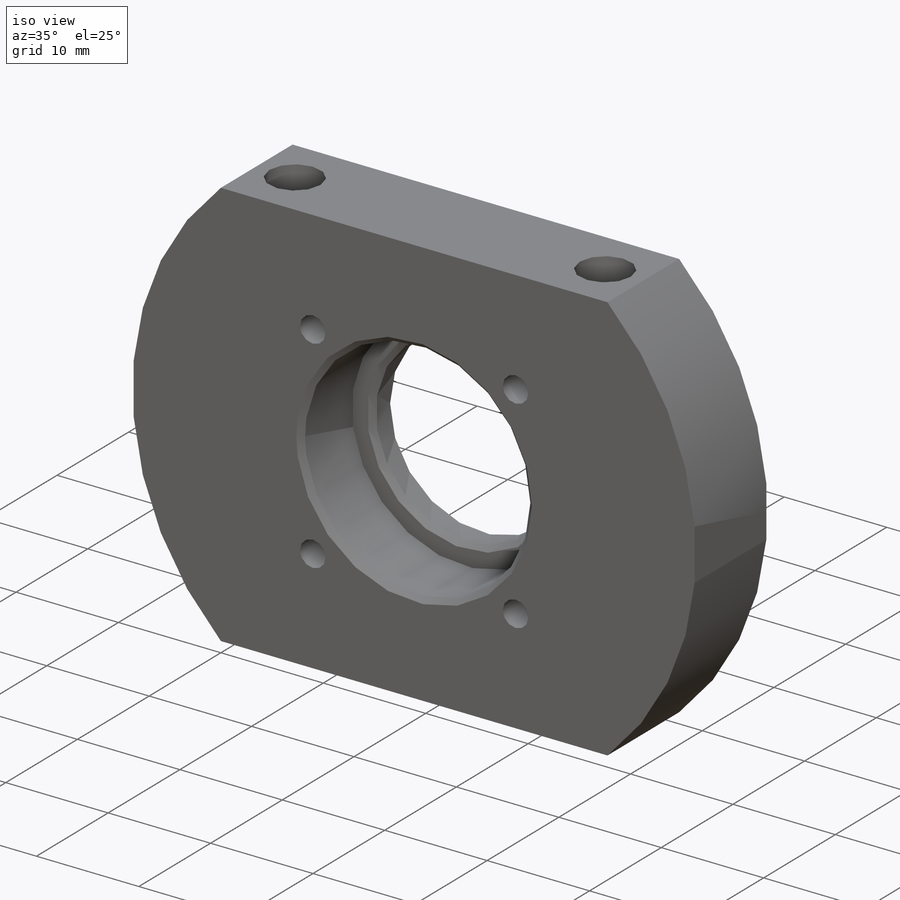
[diagram: iso view]
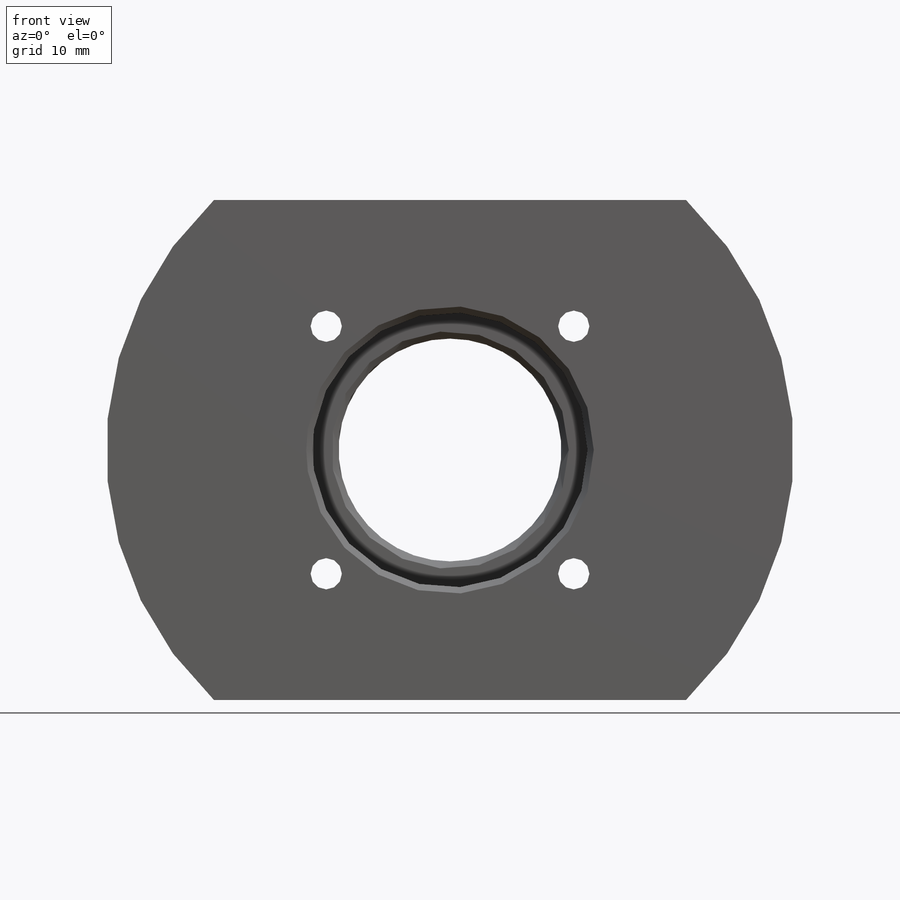
[diagram: front view]
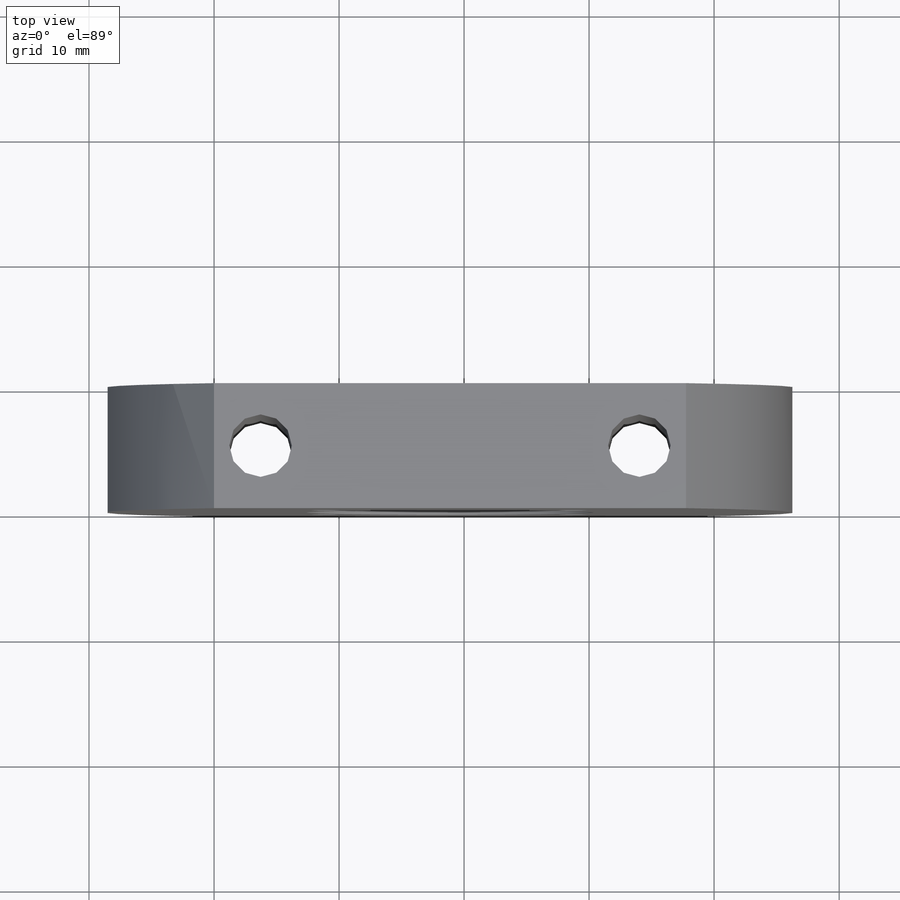
[diagram: top view]
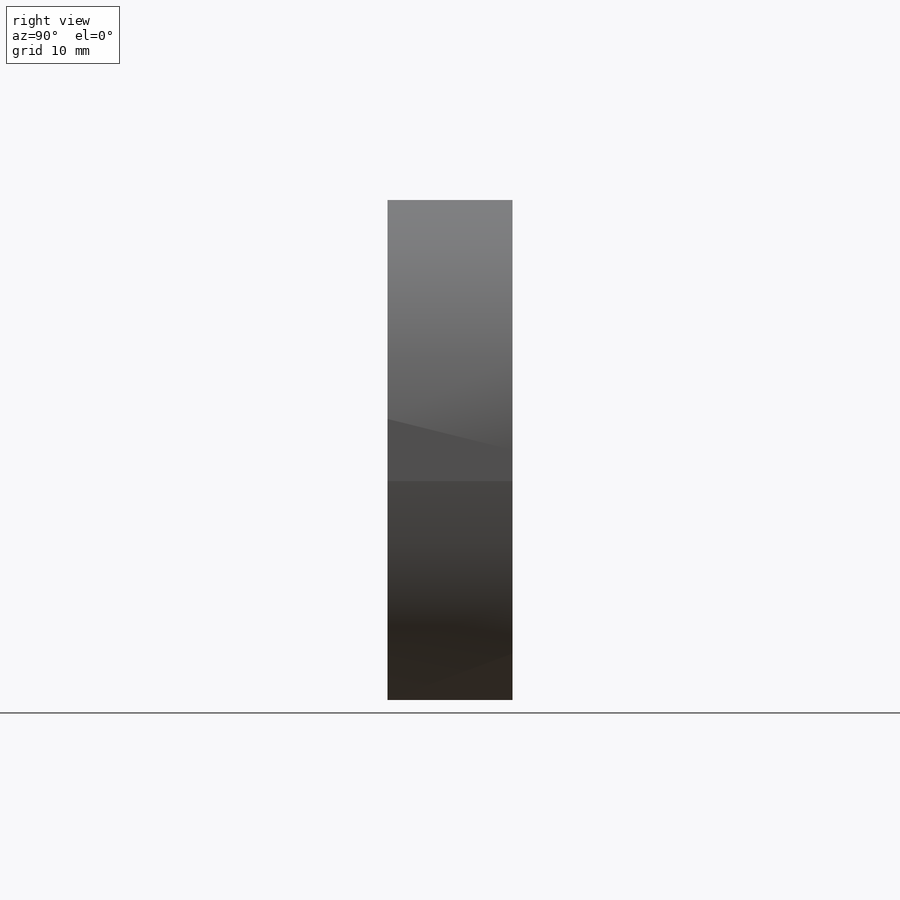
[diagram: right view]
SOLIDWORKS PART (.sldprt)
format: sldprt  version: not decoded by parser v0  size: 225,280 bytes
history: native  units: mm
features: sketch x6, thread x4, plane x3, cut_extrude x2, material x1, extrude x1, chamfer x1, hole x1 (+9 scaffold rows collapsed)
feature tree (28):
  scaffold x9  (default folders/planes/origin — collapsed)
  material  "Material <not specified>"
  plane  "Face"
  plane  "Dessus"
  plane  "Droite"
  sketch  "Esquisse1"  dims[D2=18.0mm D3=27.5mm D1=40.0mm]
  extrude  "Extrusion1"  Depth=10mm
  sketch  "Esquisse2"  dims[D1=22.0mm]
  cut_extrude  "Enlèv. mat.-Extru.1"  Depth=7mm
  chamfer  "Chanfrein1"  Distance=0.5mm Angle=45deg
  hole  "Trou taraudé M31"  Diameter=2.5mm Depth=10mm
  sketch  "Esquisse4"  dims[c1.D1=28.0mm c1.D2=28.0mm c2.D2=45.0deg c2.D3=40.0mm c3.D3=45.0deg]
  sketch  "Esquisse3"  dims[hole-wizard template sketch: 60 standard entries collapsed; hole parameters kept: c18.Profondeur du trou pour taraudage jusqu'au prochain=10.0mm]
  thread  "Filetage de perçage1"  Diameter=3mm  [1 undecoded]
  thread  "Filetage de perçage2"  Diameter=3mm  [1 undecoded]
  thread  "Filetage de perçage3"  Diameter=3mm  [1 undecoded]
  thread  "Filetage de perçage4"  Diameter=3mm  [1 undecoded]
  sketch  "Esquisse6"
  sketch  "Esquisse7"  dims[D1=5.0mm D2=4.0mm]
  cut_extrude  "Enlèv. mat.-Extru.2"  [1 undecoded]
decode coverage: 13 of 15 modeling features carry decoded parameters
note: ~ marks probable driven/reference dimensions
note: 5 parameter values undecoded
note: suppression state not decoded; provenance and decode notes live in map.json
